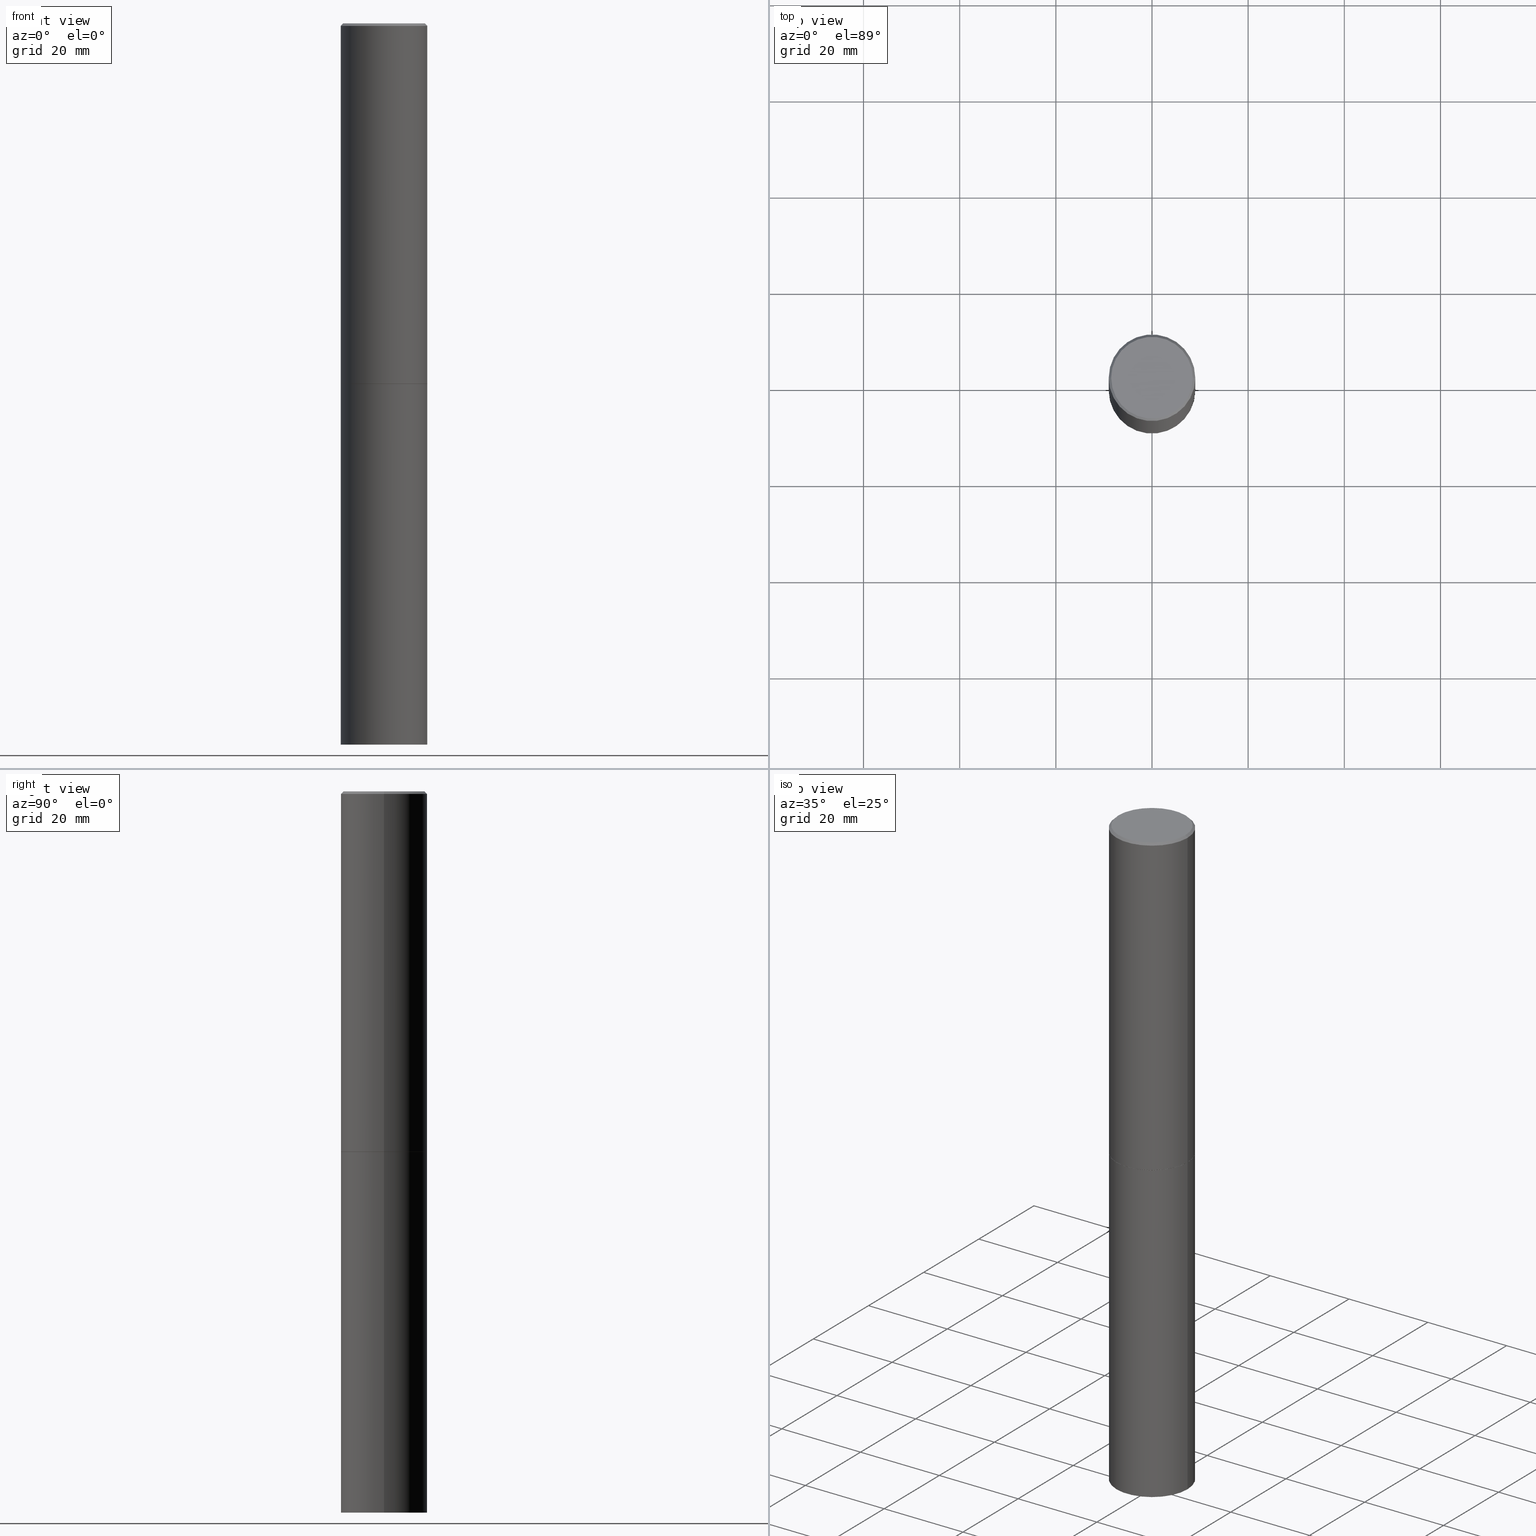
[diagram: canonical four-view strip — front | top / right | iso, engineering-drawing reading convention]
A machine part, canonical four-view strip (front | top / right | iso — engineering-drawing reading convention). The complete STEP part file that produces these views, byte-faithful:
ISO-10303-21;
HEADER;
FILE_DESCRIPTION (( 'STEP AP203' ),
    '1' );
FILE_NAME ('70561.STEP',
    '2024-02-29T04:07:19',
    ( '' ),
    ( '' ),
    'SwSTEP 2.0',
    'SolidWorks 2023',
    '' );
FILE_SCHEMA (( 'CONFIG_CONTROL_DESIGN' ));
ENDSEC;

DATA;
#1 = DIRECTION ( 'NONE',  ( -2.445468806185136597E-29, 3.491481338843145583E-15, 1.000000000000000000 ) ) ;
#2 = AXIS2_PLACEMENT_3D ( 'NONE', #126, #107, #186 ) ;
#3 = CARTESIAN_POINT ( 'NONE',  ( 0.3543499999999998873, -2.474412824838127905E-15, 1.727873240503289188E-29 ) ) ;
#4 = ORIENTED_EDGE ( 'NONE', *, *, #105, .F. ) ;
#5 = CC_DESIGN_PERSON_AND_ORGANIZATION_ASSIGNMENT ( #266, #207, ( #195 ) ) ;
#6 = FACE_OUTER_BOUND ( 'NONE', #260, .T. ) ;
#7 = CALENDAR_DATE ( 2024, 28, 2 ) ;
#8 = VECTOR ( 'NONE', #111, 39.37007874015748143 ) ;
#9 = AXIS2_PLACEMENT_3D ( 'NONE', #325, #189, #155 ) ;
#10 = EDGE_CURVE ( 'NONE', #228, #273, #220, .T. ) ;
#11 = PERSON_AND_ORGANIZATION ( #297, #324 ) ;
#12 = MANIFOLD_SOLID_BREP ( 'Body-Move/Copy2[1]', #309 ) ;
#13 = CIRCLE ( 'NONE', #81, 0.3543499999999999983 ) ;
#14 = PERSON_AND_ORGANIZATION ( #297, #324 ) ;
#15 = DIRECTION ( 'NONE',  ( 1.000000000000000000, -6.982962677686266711E-15, 4.876176775795935793E-29 ) ) ;
#16 = CARTESIAN_POINT ( 'NONE',  ( 7.218290275216666916E-29, -1.030580546786331359E-14, -2.951700000000000212 ) ) ;
#17 = CC_DESIGN_SECURITY_CLASSIFICATION ( #34, ( #195 ) ) ;
#18 = ADVANCED_FACE ( 'NONE', ( #6 ), #345, .T. ) ;
#19 = DIRECTION ( 'NONE',  ( 2.438088387897960049E-29, -3.491481338843145188E-15, -1.000000000000000000 ) ) ;
#20 = EDGE_LOOP ( 'NONE', ( #158, #314, #114, #344 ) ) ;
#21 = EDGE_CURVE ( 'NONE', #103, #310, #338, .T. ) ;
#22 = LOCAL_TIME ( 23, 7, 19.00000000000000000, #123 ) ;
#23 = AXIS2_PLACEMENT_3D ( 'NONE', #211, #157, #15 ) ;
#24 = LINE ( 'NONE', #259, #8 ) ;
#25 = CYLINDRICAL_SURFACE ( 'NONE', #179, 0.3543499999999999983 ) ;
#26 = ORIENTED_EDGE ( 'NONE', *, *, #105, .T. ) ;
#27 = DIRECTION ( 'NONE',  ( -2.445468806185136597E-29, 3.491481338843145583E-15, 1.000000000000000000 ) ) ;
#28 = ORIENTED_EDGE ( 'NONE', *, *, #84, .F. ) ;
#29 = CARTESIAN_POINT ( 'NONE',  ( 0.3533499999999999974, -1.277672681136259888E-14, -2.952700000000000546 ) ) ;
#30 = EDGE_CURVE ( 'NONE', #32, #103, #287, .T. ) ;
#31 = EDGE_LOOP ( 'NONE', ( #203, #141 ) ) ;
#32 = VERTEX_POINT ( 'NONE', #175 ) ;
#33 = CALENDAR_DATE ( 2024, 28, 2 ) ;
#34 = SECURITY_CLASSIFICATION ( '', '', #265 ) ;
#35 = VECTOR ( 'NONE', #116, 39.37007874015748143 ) ;
#36 = APPROVAL_ROLE ( '' ) ;
#37 = AXIS2_PLACEMENT_3D ( 'NONE', #351, #98, #99 ) ;
#38 = ADVANCED_FACE ( 'NONE', ( #289 ), #95, .T. ) ;
#39 = AXIS2_PLACEMENT_3D ( 'NONE', #269, #352, #300 ) ;
#40 = DIRECTION ( 'NONE',  ( 1.000000000000000000, -6.982962677686265922E-15, 0.000000000000000000 ) ) ;
#41 = ADVANCED_FACE ( 'NONE', ( #42 ), #78, .F. ) ;
#42 = FACE_OUTER_BOUND ( 'NONE', #31, .T. ) ;
#43 = ORIENTED_EDGE ( 'NONE', *, *, #124, .T. ) ;
#44 = VECTOR ( 'NONE', #185, 39.37007874015748143 ) ;
#45 = DIRECTION ( 'NONE',  ( 2.445468806185136597E-29, -3.491481338843145583E-15, -1.000000000000000000 ) ) ;
#46 = ORIENTED_EDGE ( 'NONE', *, *, #30, .F. ) ;
#47 = CARTESIAN_POINT ( 'NONE',  ( -1.043851414335219820E-46, 1.490343170380447200E-32, 4.268512490100411279E-18 ) ) ;
#48 = VECTOR ( 'NONE', #108, 39.37007874015748143 ) ;
#49 = CARTESIAN_POINT ( 'NONE',  ( -0.3543499999999999983, -1.294631181370425968E-14, -5.905499999999999972 ) ) ;
#50 = ORIENTED_EDGE ( 'NONE', *, *, #206, .F. ) ;
#51 = CARTESIAN_POINT ( 'NONE',  ( 7.220735744022853640E-29, -1.030929694920215659E-14, -2.952700000000000546 ) ) ;
#52 = EDGE_LOOP ( 'NONE', ( #77, #200 ) ) ;
#53 = EDGE_CURVE ( 'NONE', #355, #177, #208, .T. ) ;
#54 = PLANE ( 'NONE',  #74 ) ;
#55 = ORIENTED_EDGE ( 'NONE', *, *, #242, .F. ) ;
#56 = FACE_OUTER_BOUND ( 'NONE', #138, .T. ) ;
#57 = VECTOR ( 'NONE', #359, 39.37007874015748143 ) ;
#58 = ORIENTED_EDGE ( 'NONE', *, *, #53, .T. ) ;
#59 =( NAMED_UNIT ( * ) PLANE_ANGLE_UNIT ( ) SI_UNIT ( $, .RADIAN. ) );
#60 = ORIENTED_EDGE ( 'NONE', *, *, #348, .T. ) ;
#61 = PRODUCT_DEFINITION ( 'UNKNOWN', '', #195, #145 ) ;
#62 = APPLICATION_PROTOCOL_DEFINITION ( 'international standard', 'config_control_design', 1994, #329 ) ;
#63 = COORDINATED_UNIVERSAL_TIME_OFFSET ( 5, 0, .BEHIND. ) ;
#64 = AXIS2_PLACEMENT_3D ( 'NONE', #51, #134, #227 ) ;
#65 = CALENDAR_DATE ( 2024, 28, 2 ) ;
#66 = DATE_TIME_ROLE ( 'classification_date' ) ;
#67 = LOCAL_TIME ( 23, 7, 19.00000000000000000, #209 ) ;
#68 = AXIS2_PLACEMENT_3D ( 'NONE', #243, #160, #304 ) ;
#69 = CARTESIAN_POINT ( 'NONE',  ( 2.334753571284400520E-15, 0.3343499999999996475, -1.165242529397154385E-15 ) ) ;
#70 = CC_DESIGN_DATE_AND_TIME_ASSIGNMENT ( #239, #66, ( #34 ) ) ;
#71 = FACE_OUTER_BOUND ( 'NONE', #358, .T. ) ;
#72 = EDGE_LOOP ( 'NONE', ( #198, #58 ) ) ;
#73 = DIRECTION ( 'NONE',  ( -1.000000000000000000, 6.982962677686265922E-15, -4.876176775795935793E-29 ) ) ;
#74 = AXIS2_PLACEMENT_3D ( 'NONE', #311, #337, #172 ) ;
#75 = AXIS2_PLACEMENT_3D ( 'NONE', #171, #317, #88 ) ;
#76 = DIRECTION ( 'NONE',  ( -2.445468806185136597E-29, 3.491481338843145583E-15, 1.000000000000000000 ) ) ;
#77 = ORIENTED_EDGE ( 'NONE', *, *, #221, .F. ) ;
#78 = PLANE ( 'NONE',  #166 ) ;
#79 = DIRECTION ( 'NONE',  ( -2.445468806185136597E-29, 3.491481338843145583E-15, 1.000000000000000000 ) ) ;
#80 = ORIENTED_EDGE ( 'NONE', *, *, #261, .T. ) ;
#81 = AXIS2_PLACEMENT_3D ( 'NONE', #168, #204, #230 ) ;
#82 = CARTESIAN_POINT ( 'NONE',  ( -0.3533499999999999974, -7.793295738045619809E-15, -2.952700000000000546 ) ) ;
#83 = VERTEX_POINT ( 'NONE', #104 ) ;
#84 = EDGE_CURVE ( 'NONE', #228, #133, #192, .T. ) ;
#85 = DIRECTION ( 'NONE',  ( 2.445468806185136597E-29, -3.491481338843145583E-15, -1.000000000000000000 ) ) ;
#86 = ORIENTED_EDGE ( 'NONE', *, *, #124, .F. ) ;
#87 =( LENGTH_UNIT ( ) NAMED_UNIT ( * ) SI_UNIT ( $, .METRE. ) );
#88 = DIRECTION ( 'NONE',  ( 1.000000000000000000, -6.982962677686271444E-15, 0.000000000000000000 ) ) ;
#89 = VECTOR ( 'NONE', #215, 39.37007874015748143 ) ;
#90 = ADVANCED_FACE ( 'NONE', ( #71 ), #320, .T. ) ;
#91 = CYLINDRICAL_SURFACE ( 'NONE', #241, 0.3543499999999998873 ) ;
#92 = VERTEX_POINT ( 'NONE', #330 ) ;
#93 = DATE_AND_TIME ( #347, #343 ) ;
#94 = PERSON_AND_ORGANIZATION ( #297, #324 ) ;
#95 = CYLINDRICAL_SURFACE ( 'NONE', #23, 0.3543499999999999983 ) ;
#96 = CIRCLE ( 'NONE', #301, 0.3543499999999999983 ) ;
#97 = ADVANCED_FACE ( 'NONE', ( #129 ), #244, .F. ) ;
#98 = DIRECTION ( 'NONE',  ( 0.000000000000000000, 0.000000000000000000, 1.000000000000000000 ) ) ;
#99 = DIRECTION ( 'NONE',  ( 1.000000000000000000, 0.000000000000000000, 0.000000000000000000 ) ) ;
#100 = EDGE_CURVE ( 'NONE', #310, #83, #122, .T. ) ;
#101 = CONICAL_SURFACE ( 'NONE', #139, 0.3533499999999999974, 0.7853981633972775267 ) ;
#102 = FACE_OUTER_BOUND ( 'NONE', #72, .T. ) ;
#103 = VERTEX_POINT ( 'NONE', #302 ) ;
#104 = CARTESIAN_POINT ( 'NONE',  ( -0.3543499999999996652, 2.404583198061263029E-15, -0.02000000000000008021 ) ) ;
#105 = EDGE_CURVE ( 'NONE', #366, #103, #274, .T. ) ;
#106 = AXIS2_PLACEMENT_3D ( 'NONE', #16, #332, #272 ) ;
#107 = DIRECTION ( 'NONE',  ( -2.445468806185136597E-29, 3.491481338843145583E-15, 1.000000000000000000 ) ) ;
#108 = DIRECTION ( 'NONE',  ( -2.445468806185136877E-29, 3.491481338843145188E-15, 1.000000000000000000 ) ) ;
#109 = DIRECTION ( 'NONE',  ( 1.000000000000000000, -6.982962677686267499E-15, 0.000000000000000000 ) ) ;
#110 = CLOSED_SHELL ( 'NONE', ( #18, #238, #319, #90, #254, #341, #97, #201 ) ) ;
#111 = DIRECTION ( 'NONE',  ( -0.7071067811864267805, 7.493145998869918709E-15, 0.7071067811866682540 ) ) ;
#112 = ORIENTED_EDGE ( 'NONE', *, *, #303, .T. ) ;
#113 = CYLINDRICAL_SURFACE ( 'NONE', #277, 0.3543499999999998873 ) ;
#114 = ORIENTED_EDGE ( 'NONE', *, *, #21, .T. ) ;
#115 = DIRECTION ( 'NONE',  ( -2.445468806185136597E-29, 3.491481338843145583E-15, 1.000000000000000000 ) ) ;
#116 = DIRECTION ( 'NONE',  ( -2.445468806185136877E-29, 3.491481338843145188E-15, 1.000000000000000000 ) ) ;
#117 =( GEOMETRIC_REPRESENTATION_CONTEXT ( 3 ) GLOBAL_UNCERTAINTY_ASSIGNED_CONTEXT ( ( #178 ) ) GLOBAL_UNIT_ASSIGNED_CONTEXT ( ( #288, #59, #146 ) ) REPRESENTATION_CONTEXT ( 'NONE', 'WORKASPACE' ) );
#118 = APPROVAL_ROLE ( '' ) ;
#119 = EDGE_CURVE ( 'NONE', #92, #133, #190, .T. ) ;
#120 = AXIS2_PLACEMENT_3D ( 'NONE', #47, #79, #194 ) ;
#121 = PERSON_AND_ORGANIZATION_ROLE ( 'design_supplier' ) ;
#122 = CIRCLE ( 'NONE', #180, 0.3543499999999996652 ) ;
#123 = COORDINATED_UNIVERSAL_TIME_OFFSET ( 5, 0, .BEHIND. ) ;
#124 = EDGE_CURVE ( 'NONE', #355, #310, #326, .T. ) ;
#125 = CONICAL_SURFACE ( 'NONE', #151, 0.3543499999999996652, 0.7853981633974459475 ) ;
#126 = CARTESIAN_POINT ( 'NONE',  ( 7.220735744022852519E-29, -1.030929694920215502E-14, -2.952700000000000102 ) ) ;
#127 = DIRECTION ( 'NONE',  ( 2.438088387897960049E-29, -3.491481338843145188E-15, -1.000000000000000000 ) ) ;
#128 = MANIFOLD_SOLID_BREP ( 'Body-Move/Copy2[2]', #110 ) ;
#129 = FACE_OUTER_BOUND ( 'NONE', #52, .T. ) ;
#130 = CC_DESIGN_PERSON_AND_ORGANIZATION_ASSIGNMENT ( #11, #296, ( #61 ) ) ;
#131 = DIRECTION ( 'NONE',  ( -2.445468806185136597E-29, 3.491481338843145583E-15, 1.000000000000000000 ) ) ;
#132 = AXIS2_PLACEMENT_3D ( 'NONE', #251, #1, #365 ) ;
#133 = VERTEX_POINT ( 'NONE', #222 ) ;
#134 = DIRECTION ( 'NONE',  ( -2.445468806185136597E-29, 3.491481338843145583E-15, 1.000000000000000000 ) ) ;
#135 = CC_DESIGN_PERSON_AND_ORGANIZATION_ASSIGNMENT ( #94, #322, ( #34 ) ) ;
#136 = DIRECTION ( 'NONE',  ( -2.445468806185136597E-29, 3.491481338843145583E-15, 1.000000000000000000 ) ) ;
#137 = CARTESIAN_POINT ( 'NONE',  ( 0.000000000000000000, 0.000000000000000000, 0.000000000000000000 ) ) ;
#138 = EDGE_LOOP ( 'NONE', ( #55, #173, #26, #46 ) ) ;
#139 = AXIS2_PLACEMENT_3D ( 'NONE', #253, #115, #109 ) ;
#140 = CARTESIAN_POINT ( 'NONE',  ( 4.890937612370293302E-31, -6.982962677686318726E-17, -0.02000000000000008021 ) ) ;
#141 = ORIENTED_EDGE ( 'NONE', *, *, #187, .T. ) ;
#142 = PRODUCT ( '70561', '70561', '', ( #321 ) ) ;
#143 = ORIENTED_EDGE ( 'NONE', *, *, #53, .F. ) ;
#144 = DIMENSIONAL_EXPONENTS ( 1.000000000000000000, 0.000000000000000000, 0.000000000000000000, 0.000000000000000000, 0.000000000000000000, 0.000000000000000000, 0.000000000000000000 ) ;
#145 = DESIGN_CONTEXT ( 'detailed design', #329, 'design' ) ;
#146 =( NAMED_UNIT ( * ) SI_UNIT ( $, .STERADIAN. ) SOLID_ANGLE_UNIT ( ) );
#147 = ORIENTED_EDGE ( 'NONE', *, *, #323, .F. ) ;
#148 = VECTOR ( 'NONE', #335, 39.37007874015748143 ) ;
#149 = CALENDAR_DATE ( 2024, 28, 2 ) ;
#150 = APPROVAL_STATUS ( 'not_yet_approved' ) ;
#151 = AXIS2_PLACEMENT_3D ( 'NONE', #140, #85, #170 ) ;
#152 = APPROVAL_DATE_TIME ( #234, #275 ) ;
#153 = AXIS2_PLACEMENT_3D ( 'NONE', #232, #258, #255 ) ;
#154 = APPROVAL ( #150, 'UNSPECIFIED' ) ;
#155 = DIRECTION ( 'NONE',  ( 1.000000000000000000, -6.982962677686265922E-15, 4.876176775795935793E-29 ) ) ;
#156 = DIRECTION ( 'NONE',  ( -1.000000000000000000, 6.982962677686265922E-15, -4.876176775795935793E-29 ) ) ;
#157 = DIRECTION ( 'NONE',  ( -2.445468806185136597E-29, 3.491481338843145583E-15, 1.000000000000000000 ) ) ;
#158 = ORIENTED_EDGE ( 'NONE', *, *, #270, .F. ) ;
#159 = AXIS2_PLACEMENT_3D ( 'NONE', #248, #45, #305 ) ;
#160 = DIRECTION ( 'NONE',  ( -2.445468806185136597E-29, 3.491481338843145583E-15, 1.000000000000000000 ) ) ;
#161 = CARTESIAN_POINT ( 'NONE',  ( 4.890937612370293302E-31, -6.982962677686318726E-17, -0.02000000000000008021 ) ) ;
#162 = EDGE_LOOP ( 'NONE', ( #80, #286, #291, #219 ) ) ;
#163 = DIRECTION ( 'NONE',  ( -2.445468806185136597E-29, 3.491481338843145583E-15, 1.000000000000000000 ) ) ;
#164 = LOCAL_TIME ( 23, 7, 19.00000000000000000, #290 ) ;
#165 = ORIENTED_EDGE ( 'NONE', *, *, #242, .T. ) ;
#166 = AXIS2_PLACEMENT_3D ( 'NONE', #240, #19, #73 ) ;
#167 = ADVANCED_BREP_SHAPE_REPRESENTATION ( '70561', ( #12, #128, #37 ), #117 ) ;
#168 = CARTESIAN_POINT ( 'NONE',  ( 1.444171603492632270E-28, -2.061894304653819197E-14, -5.905499999999999972 ) ) ;
#169 = ORIENTED_EDGE ( 'NONE', *, *, #21, .F. ) ;
#170 = DIRECTION ( 'NONE',  ( -1.000000000000000000, 6.982962677686266711E-15, 0.000000000000000000 ) ) ;
#171 = CARTESIAN_POINT ( 'NONE',  ( 1.444171603492632270E-28, -2.061894304653819197E-14, -5.905499999999999972 ) ) ;
#172 = DIRECTION ( 'NONE',  ( -1.000000000000000000, 6.982962677686265922E-15, -4.876176775795935793E-29 ) ) ;
#173 = ORIENTED_EDGE ( 'NONE', *, *, #193, .T. ) ;
#174 = CARTESIAN_POINT ( 'NONE',  ( 0.000000000000000000, 0.000000000000000000, 0.000000000000000000 ) ) ;
#175 = CARTESIAN_POINT ( 'NONE',  ( -0.3543499999999999983, -2.670009363154171868E-15, -2.951700000000000212 ) ) ;
#176 = PERSON_AND_ORGANIZATION ( #297, #324 ) ;
#177 = VERTEX_POINT ( 'NONE', #217 ) ;
#178 = UNCERTAINTY_MEASURE_WITH_UNIT (LENGTH_MEASURE( 1.000000000000000082E-05 ), #288, 'distance_accuracy_value', 'NONE');
#179 = AXIS2_PLACEMENT_3D ( 'NONE', #174, #27, #308 ) ;
#180 = AXIS2_PLACEMENT_3D ( 'NONE', #161, #131, #246 ) ;
#181 = PERSON_AND_ORGANIZATION ( #297, #324 ) ;
#182 = APPLICATION_PROTOCOL_DEFINITION ( 'international standard', 'config_control_design', 1994, #257 ) ;
#183 = CC_DESIGN_APPROVAL ( #154, ( #195 ) ) ;
#184 = EDGE_CURVE ( 'NONE', #103, #32, #256, .T. ) ;
#185 = DIRECTION ( 'NONE',  ( 0.7071067811865459074, -7.319954787623251312E-15, -0.7071067811865492381 ) ) ;
#186 = DIRECTION ( 'NONE',  ( 1.000000000000000000, -6.982962677686265922E-15, 0.000000000000000000 ) ) ;
#187 = EDGE_CURVE ( 'NONE', #133, #92, #96, .T. ) ;
#188 = APPROVAL_PERSON_ORGANIZATION ( #176, #282, #118 ) ;
#189 = DIRECTION ( 'NONE',  ( -2.438088387897960049E-29, 3.491481338843145188E-15, 1.000000000000000000 ) ) ;
#190 = CIRCLE ( 'NONE', #2, 0.3543499999999999983 ) ;
#191 = CARTESIAN_POINT ( 'NONE',  ( -0.3543499999999999983, 2.517808184165914997E-15, -1.743024649231826066E-29 ) ) ;
#192 = LINE ( 'NONE', #191, #279 ) ;
#193 = EDGE_CURVE ( 'NONE', #312, #366, #360, .T. ) ;
#194 = DIRECTION ( 'NONE',  ( 1.000000000000000000, -6.982962677686266711E-15, 4.876061227832602160E-29 ) ) ;
#195 = PRODUCT_DEFINITION_FORMATION_WITH_SPECIFIED_SOURCE ( 'ANY', '', #142, .NOT_KNOWN. ) ;
#196 = ORIENTED_EDGE ( 'NONE', *, *, #10, .F. ) ;
#197 = CARTESIAN_POINT ( 'NONE',  ( 0.3543499999999999983, -2.309335587137632500E-14, -5.905499999999999972 ) ) ;
#198 = ORIENTED_EDGE ( 'NONE', *, *, #323, .T. ) ;
#199 = LINE ( 'NONE', #285, #148 ) ;
#200 = ORIENTED_EDGE ( 'NONE', *, *, #193, .F. ) ;
#201 = ADVANCED_FACE ( 'NONE', ( #102 ), #214, .F. ) ;
#202 = LENGTH_MEASURE_WITH_UNIT ( LENGTH_MEASURE( 0.02539999999999999897 ), #87 );
#203 = ORIENTED_EDGE ( 'NONE', *, *, #119, .T. ) ;
#204 = DIRECTION ( 'NONE',  ( -2.445468806185136597E-29, 3.491481338843145583E-15, 1.000000000000000000 ) ) ;
#205 = ORIENTED_EDGE ( 'NONE', *, *, #100, .T. ) ;
#206 = EDGE_CURVE ( 'NONE', #177, #83, #271, .T. ) ;
#207 = PERSON_AND_ORGANIZATION_ROLE ( 'creator' ) ;
#208 = CIRCLE ( 'NONE', #68, 0.3343499999999996475 ) ;
#209 = COORDINATED_UNIVERSAL_TIME_OFFSET ( 5, 0, .BEHIND. ) ;
#210 = PERSON_AND_ORGANIZATION ( #297, #324 ) ;
#211 = CARTESIAN_POINT ( 'NONE',  ( 0.000000000000000000, 0.000000000000000000, 0.000000000000000000 ) ) ;
#212 = CC_DESIGN_PERSON_AND_ORGANIZATION_ASSIGNMENT ( #14, #268, ( #142 ) ) ;
#213 = LOCAL_TIME ( 23, 7, 19.00000000000000000, #63 ) ;
#214 = PLANE ( 'NONE',  #350 ) ;
#215 = DIRECTION ( 'NONE',  ( -0.7071067811865459074, 2.468850131082239706E-15, -0.7071067811865492381 ) ) ;
#216 = ORIENTED_EDGE ( 'NONE', *, *, #261, .F. ) ;
#217 = CARTESIAN_POINT ( 'NONE',  ( -0.3343499999999996475, 2.369668384672832169E-15, 4.268512490083961526E-18 ) ) ;
#218 = CARTESIAN_POINT ( 'NONE',  ( 7.220735744022852519E-29, -1.030929694920215502E-14, -2.952700000000000102 ) ) ;
#219 = ORIENTED_EDGE ( 'NONE', *, *, #303, .F. ) ;
#220 = CIRCLE ( 'NONE', #75, 0.3543499999999999983 ) ;
#221 = EDGE_CURVE ( 'NONE', #366, #312, #307, .T. ) ;
#222 = CARTESIAN_POINT ( 'NONE',  ( -0.3543499999999999983, -1.294631181370425968E-14, -2.952700000000000102 ) ) ;
#223 = FACE_OUTER_BOUND ( 'NONE', #364, .T. ) ;
#224 = CARTESIAN_POINT ( 'NONE',  ( 0.3343499999999996475, -2.397327298921056737E-15, 4.268512490116958099E-18 ) ) ;
#225 = CC_DESIGN_APPROVAL ( #282, ( #61 ) ) ;
#226 = EDGE_LOOP ( 'NONE', ( #28, #336, #112, #252 ) ) ;
#227 = DIRECTION ( 'NONE',  ( 1.000000000000000000, -6.982962677686267499E-15, 0.000000000000000000 ) ) ;
#228 = VERTEX_POINT ( 'NONE', #49 ) ;
#229 = PRODUCT_DEFINITION_SHAPE ( 'NONE', 'NONE',  #61 ) ;
#230 = DIRECTION ( 'NONE',  ( 1.000000000000000000, -6.982962677686271444E-15, 0.000000000000000000 ) ) ;
#231 = CARTESIAN_POINT ( 'NONE',  ( 7.218290275216666916E-29, -1.030580546786331359E-14, -2.951700000000000212 ) ) ;
#232 = CARTESIAN_POINT ( 'NONE',  ( 7.220735744022853640E-29, -1.030929694920215659E-14, -2.952700000000000546 ) ) ;
#233 = APPROVAL_PERSON_ORGANIZATION ( #298, #275, #36 ) ;
#234 = DATE_AND_TIME ( #65, #67 ) ;
#235 = DATE_AND_TIME ( #149, #164 ) ;
#236 = DATE_TIME_ROLE ( 'creation_date' ) ;
#237 = APPROVAL_ROLE ( '' ) ;
#238 = ADVANCED_FACE ( 'NONE', ( #342 ), #91, .T. ) ;
#239 = DATE_AND_TIME ( #7, #22 ) ;
#240 = CARTESIAN_POINT ( 'NONE',  ( 2.474412824838200480E-15, 0.3543499999999896732, -2.952700000000000990 ) ) ;
#241 = AXIS2_PLACEMENT_3D ( 'NONE', #137, #136, #278 ) ;
#242 = EDGE_CURVE ( 'NONE', #312, #32, #24, .T. ) ;
#243 = CARTESIAN_POINT ( 'NONE',  ( -1.043851414335219820E-46, 1.490343170380447200E-32, 4.268512490100411279E-18 ) ) ;
#244 = PLANE ( 'NONE',  #9 ) ;
#245 = ORIENTED_EDGE ( 'NONE', *, *, #100, .F. ) ;
#246 = DIRECTION ( 'NONE',  ( 1.000000000000000000, -6.982962677686266711E-15, 0.000000000000000000 ) ) ;
#247 = ORIENTED_EDGE ( 'NONE', *, *, #270, .T. ) ;
#248 = CARTESIAN_POINT ( 'NONE',  ( 4.890937612370293302E-31, -6.982962677686318726E-17, -0.02000000000000008021 ) ) ;
#249 = ORIENTED_EDGE ( 'NONE', *, *, #184, .T. ) ;
#250 = CARTESIAN_POINT ( 'NONE',  ( 0.3543499999999996652, -2.500847092287203323E-15, -0.02000000000000008021 ) ) ;
#251 = CARTESIAN_POINT ( 'NONE',  ( 4.890937612370293302E-31, -6.982962677686318726E-17, -0.02000000000000008021 ) ) ;
#252 = ORIENTED_EDGE ( 'NONE', *, *, #187, .F. ) ;
#253 = CARTESIAN_POINT ( 'NONE',  ( 7.220735744022853640E-29, -1.030929694920215659E-14, -2.952700000000000546 ) ) ;
#254 = ADVANCED_FACE ( 'NONE', ( #333 ), #113, .T. ) ;
#255 = DIRECTION ( 'NONE',  ( 1.000000000000000000, -6.982962677686267499E-15, 0.000000000000000000 ) ) ;
#256 = CIRCLE ( 'NONE', #106, 0.3543499999999999983 ) ;
#257 = APPLICATION_CONTEXT ( 'configuration controlled 3d designs of mechanical parts and assemblies' ) ;
#258 = DIRECTION ( 'NONE',  ( -2.445468806185136597E-29, 3.491481338843145583E-15, 1.000000000000000000 ) ) ;
#259 = CARTESIAN_POINT ( 'NONE',  ( -0.3533499999999999974, -7.798594192393843789E-15, -2.952700000000000546 ) ) ;
#260 = EDGE_LOOP ( 'NONE', ( #306, #165, #284, #4 ) ) ;
#261 = EDGE_CURVE ( 'NONE', #273, #228, #13, .T. ) ;
#262 = COORDINATED_UNIVERSAL_TIME_OFFSET ( 5, 0, .BEHIND. ) ;
#263 = CIRCLE ( 'NONE', #120, 0.3343499999999996475 ) ;
#264 = APPROVAL_DATE_TIME ( #235, #282 ) ;
#265 = SECURITY_CLASSIFICATION_LEVEL ( 'unclassified' ) ;
#266 = PERSON_AND_ORGANIZATION ( #297, #324 ) ;
#267 = PRODUCT_RELATED_PRODUCT_CATEGORY ( 'detail', '', ( #142 ) ) ;
#268 = PERSON_AND_ORGANIZATION_ROLE ( 'design_owner' ) ;
#269 = CARTESIAN_POINT ( 'NONE',  ( 7.220735744022853640E-29, -1.030929694920215659E-14, -2.952700000000000546 ) ) ;
#270 = EDGE_CURVE ( 'NONE', #32, #83, #339, .T. ) ;
#271 = LINE ( 'NONE', #354, #89 ) ;
#272 = DIRECTION ( 'NONE',  ( 1.000000000000000000, -6.982962677686265922E-15, 0.000000000000000000 ) ) ;
#273 = VERTEX_POINT ( 'NONE', #197 ) ;
#274 = LINE ( 'NONE', #361, #57 ) ;
#275 = APPROVAL ( #294, 'UNSPECIFIED' ) ;
#276 = ORIENTED_EDGE ( 'NONE', *, *, #206, .T. ) ;
#277 = AXIS2_PLACEMENT_3D ( 'NONE', #315, #163, #363 ) ;
#278 = DIRECTION ( 'NONE',  ( 1.000000000000000000, -6.982962677686266711E-15, 4.876176775795935232E-29 ) ) ;
#279 = VECTOR ( 'NONE', #299, 39.37007874015748143 ) ;
#280 = FACE_OUTER_BOUND ( 'NONE', #226, .T. ) ;
#281 = EDGE_LOOP ( 'NONE', ( #216, #196 ) ) ;
#282 = APPROVAL ( #318, 'UNSPECIFIED' ) ;
#283 = CARTESIAN_POINT ( 'NONE',  ( -0.3543499999999998873, 2.517808184165914208E-15, -1.743024649231825225E-29 ) ) ;
#284 = ORIENTED_EDGE ( 'NONE', *, *, #184, .F. ) ;
#285 = CARTESIAN_POINT ( 'NONE',  ( 0.3543499999999999983, -2.474412824838128694E-15, 1.727873240503289749E-29 ) ) ;
#286 = ORIENTED_EDGE ( 'NONE', *, *, #84, .T. ) ;
#287 = CIRCLE ( 'NONE', #293, 0.3543499999999999983 ) ;
#288 =( CONVERSION_BASED_UNIT ( 'INCH', #202 ) LENGTH_UNIT ( ) NAMED_UNIT ( #144 ) );
#289 = FACE_OUTER_BOUND ( 'NONE', #162, .T. ) ;
#290 = COORDINATED_UNIVERSAL_TIME_OFFSET ( 5, 0, .BEHIND. ) ;
#291 = ORIENTED_EDGE ( 'NONE', *, *, #119, .F. ) ;
#292 = DATE_AND_TIME ( #33, #213 ) ;
#293 = AXIS2_PLACEMENT_3D ( 'NONE', #231, #340, #316 ) ;
#294 = APPROVAL_STATUS ( 'not_yet_approved' ) ;
#295 = CC_DESIGN_DATE_AND_TIME_ASSIGNMENT ( #292, #236, ( #61 ) ) ;
#296 = PERSON_AND_ORGANIZATION_ROLE ( 'creator' ) ;
#297 = PERSON ( 'UNSPECIFIED', 'UNSPECIFIED', 'UNSPECIFIED', ('UNSPECIFIED'), ('UNSPECIFIED'), ('UNSPECIFIED') ) ;
#298 = PERSON_AND_ORGANIZATION ( #297, #324 ) ;
#299 = DIRECTION ( 'NONE',  ( -2.445468806185136877E-29, 3.491481338843145188E-15, 1.000000000000000000 ) ) ;
#300 = DIRECTION ( 'NONE',  ( 1.000000000000000000, -6.982962677686267499E-15, 0.000000000000000000 ) ) ;
#301 = AXIS2_PLACEMENT_3D ( 'NONE', #218, #76, #40 ) ;
#302 = CARTESIAN_POINT ( 'NONE',  ( 0.3543499999999999983, -1.278021829270144189E-14, -2.951700000000000212 ) ) ;
#303 = EDGE_CURVE ( 'NONE', #273, #92, #199, .T. ) ;
#304 = DIRECTION ( 'NONE',  ( 1.000000000000000000, -6.982962677686266711E-15, 4.876061227832602160E-29 ) ) ;
#305 = DIRECTION ( 'NONE',  ( -1.000000000000000000, 6.982962677686266711E-15, 0.000000000000000000 ) ) ;
#306 = ORIENTED_EDGE ( 'NONE', *, *, #221, .T. ) ;
#307 = CIRCLE ( 'NONE', #64, 0.3533499999999999974 ) ;
#308 = DIRECTION ( 'NONE',  ( 1.000000000000000000, -6.982962677686266711E-15, 4.876176775795935793E-29 ) ) ;
#309 = CLOSED_SHELL ( 'NONE', ( #38, #357, #41, #328 ) ) ;
#310 = VERTEX_POINT ( 'NONE', #250 ) ;
#311 = CARTESIAN_POINT ( 'NONE',  ( 2.474412824838272661E-15, 0.3543499999999794037, -5.905500000000000860 ) ) ;
#312 = VERTEX_POINT ( 'NONE', #82 ) ;
#313 = FACE_OUTER_BOUND ( 'NONE', #281, .T. ) ;
#314 = ORIENTED_EDGE ( 'NONE', *, *, #30, .T. ) ;
#315 = CARTESIAN_POINT ( 'NONE',  ( 0.000000000000000000, 0.000000000000000000, 0.000000000000000000 ) ) ;
#316 = DIRECTION ( 'NONE',  ( 1.000000000000000000, -6.982962677686265922E-15, 0.000000000000000000 ) ) ;
#317 = DIRECTION ( 'NONE',  ( -2.445468806185136597E-29, 3.491481338843145583E-15, 1.000000000000000000 ) ) ;
#318 = APPROVAL_STATUS ( 'not_yet_approved' ) ;
#319 = ADVANCED_FACE ( 'NONE', ( #223 ), #125, .T. ) ;
#320 = CONICAL_SURFACE ( 'NONE', #159, 0.3543499999999996652, 0.7853981633974459475 ) ;
#321 = MECHANICAL_CONTEXT ( 'NONE', #257, 'mechanical' ) ;
#322 = PERSON_AND_ORGANIZATION_ROLE ( 'classification_officer' ) ;
#323 = EDGE_CURVE ( 'NONE', #177, #355, #263, .T. ) ;
#324 = ORGANIZATION ( 'UNSPECIFIED', 'UNSPECIFIED', '' ) ;
#325 = CARTESIAN_POINT ( 'NONE',  ( 7.220735744022853640E-29, -1.030929694920215659E-14, -2.952700000000000546 ) ) ;
#326 = LINE ( 'NONE', #356, #44 ) ;
#327 = APPROVAL_PERSON_ORGANIZATION ( #210, #154, #237 ) ;
#328 = ADVANCED_FACE ( 'NONE', ( #280 ), #25, .T. ) ;
#329 = APPLICATION_CONTEXT ( 'configuration controlled 3d designs of mechanical parts and assemblies' ) ;
#330 = CARTESIAN_POINT ( 'NONE',  ( 0.3543499999999999983, -1.278370977404028332E-14, -2.952700000000000102 ) ) ;
#331 = EDGE_LOOP ( 'NONE', ( #249, #247, #245, #169 ) ) ;
#332 = DIRECTION ( 'NONE',  ( -2.445468806185136597E-29, 3.491481338843145583E-15, 1.000000000000000000 ) ) ;
#333 = FACE_OUTER_BOUND ( 'NONE', #20, .T. ) ;
#334 = CC_DESIGN_APPROVAL ( #275, ( #34 ) ) ;
#335 = DIRECTION ( 'NONE',  ( -2.445468806185136877E-29, 3.491481338843145188E-15, 1.000000000000000000 ) ) ;
#336 = ORIENTED_EDGE ( 'NONE', *, *, #10, .T. ) ;
#337 = DIRECTION ( 'NONE',  ( 2.438088387897960049E-29, -3.491481338843145188E-15, -1.000000000000000000 ) ) ;
#338 = LINE ( 'NONE', #3, #35 ) ;
#339 = LINE ( 'NONE', #283, #48 ) ;
#340 = DIRECTION ( 'NONE',  ( -2.445468806185136597E-29, 3.491481338843145583E-15, 1.000000000000000000 ) ) ;
#341 = ADVANCED_FACE ( 'NONE', ( #56 ), #101, .T. ) ;
#342 = FACE_OUTER_BOUND ( 'NONE', #331, .T. ) ;
#343 = LOCAL_TIME ( 23, 7, 19.00000000000000000, #262 ) ;
#344 = ORIENTED_EDGE ( 'NONE', *, *, #348, .F. ) ;
#345 = CONICAL_SURFACE ( 'NONE', #153, 0.3533499999999999974, 0.7853981633972775267 ) ;
#346 = SHAPE_DEFINITION_REPRESENTATION ( #229, #167 ) ;
#347 = CALENDAR_DATE ( 2024, 28, 2 ) ;
#348 = EDGE_CURVE ( 'NONE', #83, #310, #353, .T. ) ;
#349 = APPROVAL_DATE_TIME ( #93, #154 ) ;
#350 = AXIS2_PLACEMENT_3D ( 'NONE', #69, #127, #156 ) ;
#351 = CARTESIAN_POINT ( 'NONE',  ( 0.000000000000000000, 0.000000000000000000, 0.000000000000000000 ) ) ;
#352 = DIRECTION ( 'NONE',  ( -2.445468806185136597E-29, 3.491481338843145583E-15, 1.000000000000000000 ) ) ;
#353 = CIRCLE ( 'NONE', #132, 0.3543499999999996652 ) ;
#354 = CARTESIAN_POINT ( 'NONE',  ( -0.3543499999999996652, 2.404583198061263029E-15, -0.02000000000000008021 ) ) ;
#355 = VERTEX_POINT ( 'NONE', #224 ) ;
#356 = CARTESIAN_POINT ( 'NONE',  ( 0.3543499999999996652, -2.500847092287203323E-15, -0.02000000000000008021 ) ) ;
#357 = ADVANCED_FACE ( 'NONE', ( #313 ), #54, .T. ) ;
#358 = EDGE_LOOP ( 'NONE', ( #86, #147, #276, #60 ) ) ;
#359 = DIRECTION ( 'NONE',  ( 0.7071067811864267805, -2.468850131080992517E-15, 0.7071067811866682540 ) ) ;
#360 = CIRCLE ( 'NONE', #39, 0.3533499999999999974 ) ;
#361 = CARTESIAN_POINT ( 'NONE',  ( 0.3533499999999999974, -1.277672681136259888E-14, -2.952700000000000546 ) ) ;
#362 = CC_DESIGN_PERSON_AND_ORGANIZATION_ASSIGNMENT ( #181, #121, ( #195 ) ) ;
#363 = DIRECTION ( 'NONE',  ( 1.000000000000000000, -6.982962677686266711E-15, 4.876176775795935232E-29 ) ) ;
#364 = EDGE_LOOP ( 'NONE', ( #143, #43, #205, #50 ) ) ;
#365 = DIRECTION ( 'NONE',  ( 1.000000000000000000, -6.982962677686266711E-15, 0.000000000000000000 ) ) ;
#366 = VERTEX_POINT ( 'NONE', #29 ) ;
ENDSEC;
END-ISO-10303-21;
